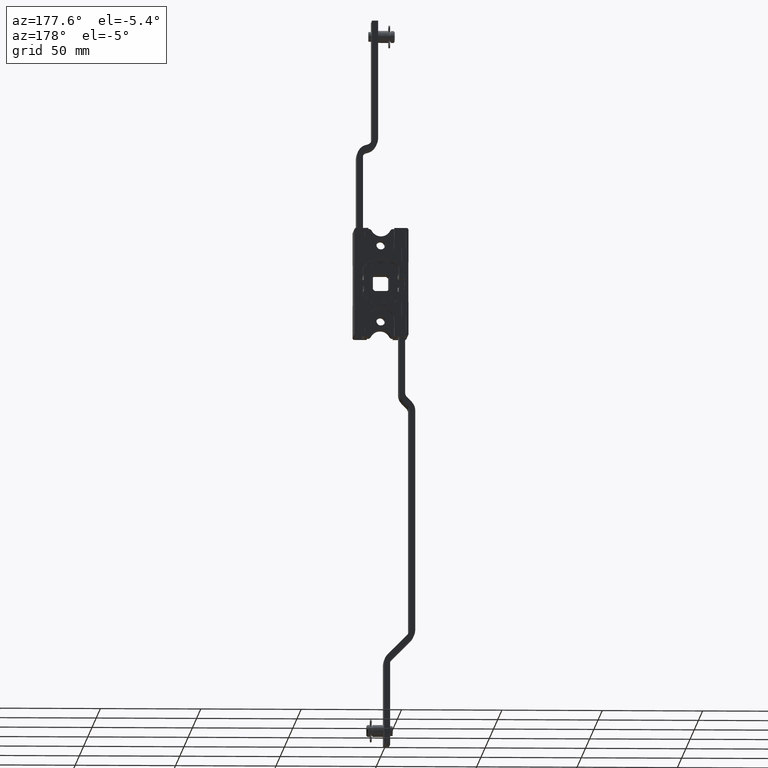
[diagram: clean part render]
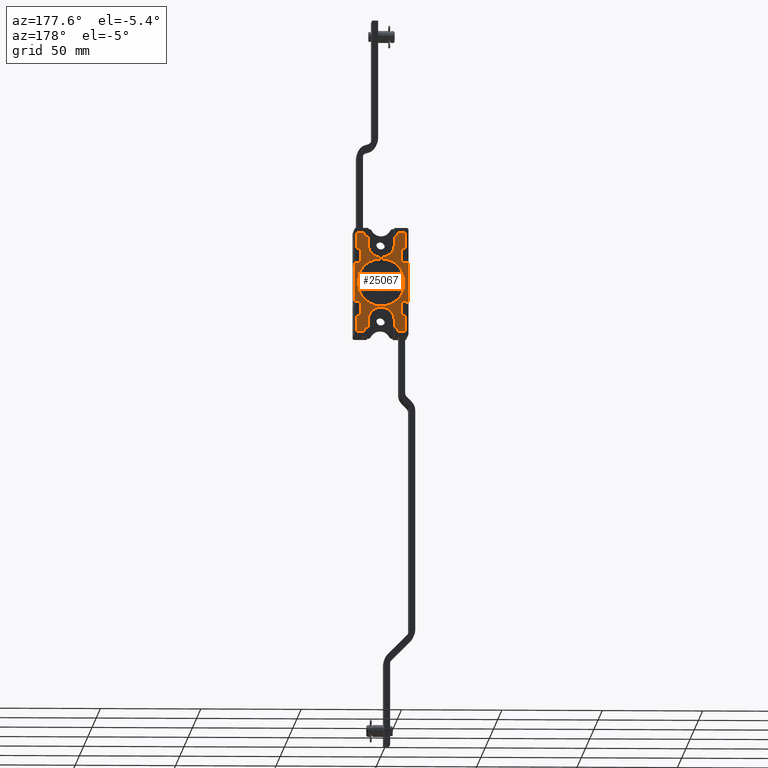
[diagram: same view with one face highlighted and labeled with its STEP entity id]
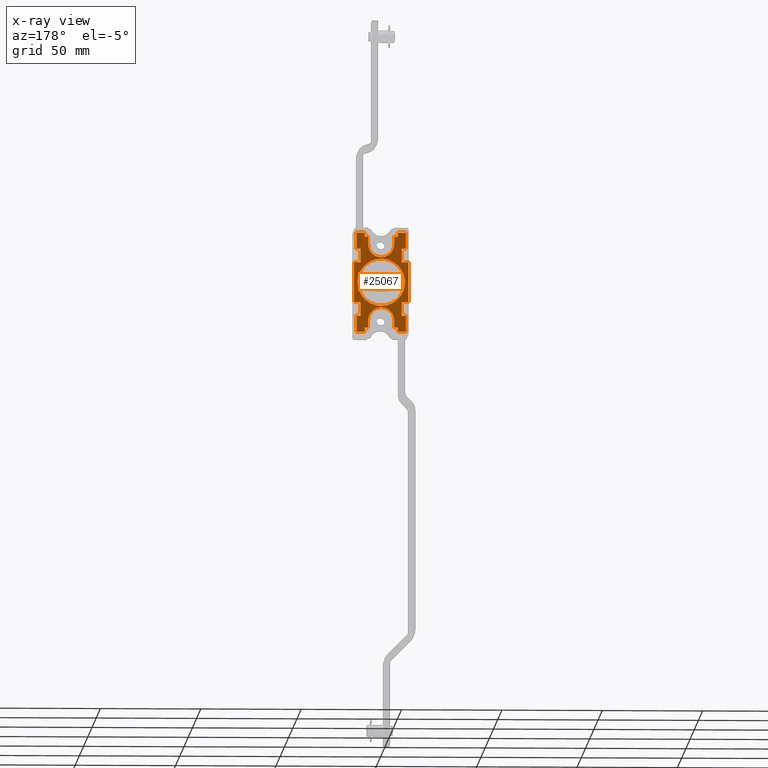
[diagram: x-ray of the same camera — body ghosted, the highlighted face saturated]
A machine part, auxiliary view. The second image highlights one B-rep face of the part: STEP entity #25067.
The next image is the same camera in x-ray: the body ghosted, the highlighted face saturated — about 0% of this face is hidden behind the body in this view.
In plain terms, the highlighted face is a freeform B-spline surface patch.
Its self-contained STEP definition (entity closure, byte-faithful):
#7294=CARTESIAN_POINT('',(3.045343107601103,8.900000422727320,-11.400258706890250));
#7295=VERTEX_POINT('',#7294);
#7296=CARTESIAN_POINT('',(-9.521273E-012,8.900000422727320,-11.800000560470259));
#7297=VERTEX_POINT('',#7296);
#7298=CARTESIAN_POINT('',(3.045343107601103,8.900000422727320,-11.400258706890250));
#7299=CARTESIAN_POINT('',(1.548907275951181,8.900000422727322,-11.800000560470261));
#7300=CARTESIAN_POINT('',(-9.521273E-012,8.900000422727320,-11.800000560470259));
#7308=(BOUNDED_CURVE()B_SPLINE_CURVE(2,(#7298,#7299,#7300),.UNSPECIFIED.,.F.,.U.)B_SPLINE_CURVE_WITH_KNOTS((3,3),(0.955984572308249,1.0),.UNSPECIFIED.)CURVE()GEOMETRIC_REPRESENTATION_ITEM()RATIONAL_B_SPLINE_CURVE((0.915023485134321,0.948432718823649,1.0))REPRESENTATION_ITEM(''));
#7309=EDGE_CURVE('',#7295,#7297,#7308,.T.);
#7311=CARTESIAN_POINT('',(-9.521273E-012,8.900000422727320,11.800000560470259));
#7312=VERTEX_POINT('',#7311);
#7313=CARTESIAN_POINT('',(-9.521273E-012,8.900000422727320,-11.800000560470259));
#7314=CARTESIAN_POINT('',(-11.800000560479779,8.900000422727322,-11.800000560470258));
#7315=CARTESIAN_POINT('',(-11.800000560479781,8.900000422727320,-1.089900E-015));
#7316=CARTESIAN_POINT('',(-11.800000560479779,8.900000422727322,11.800000560470256));
#7317=CARTESIAN_POINT('',(-9.521273E-012,8.900000422727320,11.800000560470259));
#7325=(BOUNDED_CURVE()B_SPLINE_CURVE(2,(#7313,#7314,#7315,#7316,#7317),.UNSPECIFIED.,.F.,.U.)B_SPLINE_CURVE_WITH_KNOTS((3,2,3),(0.0,0.250000000000000,0.500000000000000),.UNSPECIFIED.)CURVE()GEOMETRIC_REPRESENTATION_ITEM()RATIONAL_B_SPLINE_CURVE((1.0,0.707106781186547,1.0,0.707106781186547,1.0))REPRESENTATION_ITEM(''));
#7326=EDGE_CURVE('',#7297,#7312,#7325,.T.);
#7328=CARTESIAN_POINT('',(11.796389403912750,8.900000422727320,0.291907961742623));
#7329=VERTEX_POINT('',#7328);
#7330=CARTESIAN_POINT('',(-9.521273E-012,8.900000422727320,11.800000560470259));
#7331=CARTESIAN_POINT('',(11.511615500013697,8.900000422727320,11.800000560470256));
#7332=CARTESIAN_POINT('',(11.796389403912753,8.900000422727320,0.291907961742623));
#7340=(BOUNDED_CURVE()B_SPLINE_CURVE(2,(#7330,#7331,#7332),.UNSPECIFIED.,.F.,.U.)B_SPLINE_CURVE_WITH_KNOTS((3,3),(0.500000000000000,0.745648533336646),.UNSPECIFIED.)CURVE()GEOMETRIC_REPRESENTATION_ITEM()RATIONAL_B_SPLINE_CURVE((1.0,0.712204841496904,0.989981351695194))REPRESENTATION_ITEM(''));
#7341=EDGE_CURVE('',#7312,#7329,#7340,.T.);
#7523=CARTESIAN_POINT('',(11.796389403912752,8.900000422727320,0.291907961742623));
#7524=CARTESIAN_POINT('',(11.800000560460740,8.900000422727320,0.145976317818374));
#7525=CARTESIAN_POINT('',(11.800000560460740,8.900000422727320,-1.089900E-015));
#7526=CARTESIAN_POINT('',(11.800000560460733,8.900000422727320,-9.061633205116783));
#7527=CARTESIAN_POINT('',(3.045343107601103,8.900000422727320,-11.400258706890243));
#7535=(BOUNDED_CURVE()B_SPLINE_CURVE(2,(#7523,#7524,#7525,#7526,#7527),.UNSPECIFIED.,.F.,.U.)B_SPLINE_CURVE_WITH_KNOTS((3,2,3),(0.745648533336646,0.750000000000000,0.955984572308250),.UNSPECIFIED.)CURVE()GEOMETRIC_REPRESENTATION_ITEM()RATIONAL_B_SPLINE_CURVE((0.989981351695193,0.994901939689643,1.0,0.758674062362897,0.915023485134322))REPRESENTATION_ITEM(''));
#7536=EDGE_CURVE('',#7329,#7295,#7535,.T.);
#21226=CARTESIAN_POINT('',(6.500000308723720,8.900000422727320,19.000000902451848));
#21227=VERTEX_POINT('',#21226);
#21228=CARTESIAN_POINT('',(-6.500000308743160,8.900000422727320,19.000000902451848));
#21229=VERTEX_POINT('',#21228);
#21230=CARTESIAN_POINT('',(6.500000308723720,8.900000422727320,19.000000902451848));
#21231=CARTESIAN_POINT('',(6.500000308723719,8.900000422727322,12.500000593718411));
#21232=CARTESIAN_POINT('',(-9.720225E-012,8.900000422727320,12.500000593718410));
#21233=CARTESIAN_POINT('',(-6.500000308743160,8.900000422727322,12.500000593718411));
#21234=CARTESIAN_POINT('',(-6.500000308743161,8.900000422727320,19.000000902451848));
#21242=(BOUNDED_CURVE()B_SPLINE_CURVE(2,(#21230,#21231,#21232,#21233,#21234),.UNSPECIFIED.,.F.,.U.)B_SPLINE_CURVE_WITH_KNOTS((3,2,3),(0.0,0.500000000000000,1.0),.UNSPECIFIED.)CURVE()GEOMETRIC_REPRESENTATION_ITEM()RATIONAL_B_SPLINE_CURVE((1.0,0.707106781186547,1.0,0.707106781186547,1.0))REPRESENTATION_ITEM(''));
#21243=EDGE_CURVE('',#21227,#21229,#21242,.T.);
#21383=CARTESIAN_POINT('',(-6.500000308743100,8.900000422727320,-19.000000902451848));
#21384=VERTEX_POINT('',#21383);
#21385=CARTESIAN_POINT('',(6.500000308723690,8.900000422727320,-19.000000902451848));
#21386=VERTEX_POINT('',#21385);
#21387=CARTESIAN_POINT('',(-6.500000308743161,8.900000422727320,-19.000000902451848));
#21388=CARTESIAN_POINT('',(-6.500000308743160,8.900000422727322,-12.500000593718411));
#21389=CARTESIAN_POINT('',(-9.720225E-012,8.900000422727320,-12.500000593718410));
#21390=CARTESIAN_POINT('',(6.500000308723719,8.900000422727322,-12.500000593718411));
#21391=CARTESIAN_POINT('',(6.500000308723720,8.900000422727320,-19.000000902451848));
#21399=(BOUNDED_CURVE()B_SPLINE_CURVE(2,(#21387,#21388,#21389,#21390,#21391),.UNSPECIFIED.,.F.,.U.)B_SPLINE_CURVE_WITH_KNOTS((3,2,3),(0.0,0.500000000000000,1.0),.UNSPECIFIED.)CURVE()GEOMETRIC_REPRESENTATION_ITEM()RATIONAL_B_SPLINE_CURVE((1.0,0.707106781186547,1.0,0.707106781186547,1.0))REPRESENTATION_ITEM(''));
#21400=EDGE_CURVE('',#21384,#21386,#21399,.T.);
#21430=CARTESIAN_POINT('',(-12.250000581853520,8.900000422727320,24.750001175562200));
#21431=VERTEX_POINT('',#21430);
#21437=CARTESIAN_POINT('',(-12.250000581853520,8.900000422727320,16.750000795582601));
#21438=VERTEX_POINT('',#21437);
#21439=CARTESIAN_POINT('',(-12.250000581853520,8.900000422727320,16.750000795582601));
#21440=CARTESIAN_POINT('',(-12.250000581853520,8.900000422727320,24.750001175562200));
#21441=QUASI_UNIFORM_CURVE('',1,(#21439,#21440),.UNSPECIFIED.,.F.,.U.);
#21442=EDGE_CURVE('',#21438,#21431,#21441,.T.);
#21466=CARTESIAN_POINT('',(-12.250000581853520,8.900000422727320,-16.750000795582601));
#21467=VERTEX_POINT('',#21466);
#21473=CARTESIAN_POINT('',(-12.250000581853520,8.900000422727310,-24.750001175562200));
#21474=VERTEX_POINT('',#21473);
#21475=CARTESIAN_POINT('',(-12.250000581853520,8.900000422727310,-24.750001175562200));
#21476=CARTESIAN_POINT('',(-12.250000581853520,8.900000422727320,-16.750000795582601));
#21477=QUASI_UNIFORM_CURVE('',1,(#21475,#21476),.UNSPECIFIED.,.F.,.U.);
#21478=EDGE_CURVE('',#21474,#21467,#21477,.T.);
#21501=CARTESIAN_POINT('',(-8.250000391863718,8.900000422727310,-24.750001175562200));
#21502=VERTEX_POINT('',#21501);
#21503=CARTESIAN_POINT('',(-8.250000391863718,8.900000422727310,-24.750001175562200));
#21504=CARTESIAN_POINT('',(-12.250000581853520,8.900000422727310,-24.750001175562200));
#21505=QUASI_UNIFORM_CURVE('',1,(#21503,#21504),.UNSPECIFIED.,.F.,.U.);
#21506=EDGE_CURVE('',#21502,#21474,#21505,.T.);
#21530=CARTESIAN_POINT('',(8.250000391844200,8.900000422727310,-24.750001175562200));
#21531=VERTEX_POINT('',#21530);
#21537=CARTESIAN_POINT('',(12.250000581834000,8.900000422727310,-24.750001175562250));
#21538=VERTEX_POINT('',#21537);
#21539=CARTESIAN_POINT('',(12.250000581834000,8.900000422727310,-24.750001175562250));
#21540=CARTESIAN_POINT('',(8.250000391844200,8.900000422727310,-24.750001175562200));
#21541=QUASI_UNIFORM_CURVE('',1,(#21539,#21540),.UNSPECIFIED.,.F.,.U.);
#21542=EDGE_CURVE('',#21538,#21531,#21541,.T.);
#21565=CARTESIAN_POINT('',(12.250000581834000,8.900000422727320,-16.750000795582601));
#21566=VERTEX_POINT('',#21565);
#21567=CARTESIAN_POINT('',(12.250000581834000,8.900000422727320,-16.750000795582601));
#21568=CARTESIAN_POINT('',(12.250000581834000,8.900000422727310,-24.750001175562250));
#21569=QUASI_UNIFORM_CURVE('',1,(#21567,#21568),.UNSPECIFIED.,.F.,.U.);
#21570=EDGE_CURVE('',#21566,#21538,#21569,.T.);
#21594=CARTESIAN_POINT('',(12.250000581834000,8.900000422727320,16.750000795582601));
#21595=VERTEX_POINT('',#21594);
#21601=CARTESIAN_POINT('',(12.250000581834000,8.900000422727320,24.750001175562250));
#21602=VERTEX_POINT('',#21601);
#21603=CARTESIAN_POINT('',(12.250000581834000,8.900000422727320,24.750001175562250));
#21604=CARTESIAN_POINT('',(12.250000581834000,8.900000422727320,16.750000795582601));
#21605=QUASI_UNIFORM_CURVE('',1,(#21603,#21604),.UNSPECIFIED.,.F.,.U.);
#21606=EDGE_CURVE('',#21602,#21595,#21605,.T.);
#21629=CARTESIAN_POINT('',(8.250000391844200,8.900000422727320,24.750001175562200));
#21630=VERTEX_POINT('',#21629);
#21631=CARTESIAN_POINT('',(8.250000391844200,8.900000422727320,24.750001175562200));
#21632=CARTESIAN_POINT('',(12.250000581834000,8.900000422727320,24.750001175562250));
#21633=QUASI_UNIFORM_CURVE('',1,(#21631,#21632),.UNSPECIFIED.,.F.,.U.);
#21634=EDGE_CURVE('',#21630,#21602,#21633,.T.);
#21656=CARTESIAN_POINT('',(-8.250000391863718,8.900000422727320,24.750001175562200));
#21657=VERTEX_POINT('',#21656);
#21663=CARTESIAN_POINT('',(-12.250000581853520,8.900000422727320,24.750001175562200));
#21664=CARTESIAN_POINT('',(-8.250000391863718,8.900000422727320,24.750001175562200));
#21665=QUASI_UNIFORM_CURVE('',1,(#21663,#21664),.UNSPECIFIED.,.F.,.U.);
#21666=EDGE_CURVE('',#21431,#21657,#21665,.T.);
#21739=CARTESIAN_POINT('',(-8.250000391863718,8.900000422727320,22.750001080567301));
#21740=VERTEX_POINT('',#21739);
#21746=CARTESIAN_POINT('',(-8.250000391863718,8.900000422727320,24.750001175562200));
#21747=CARTESIAN_POINT('',(-8.250000391863718,8.900000422727320,22.750001080567301));
#21748=QUASI_UNIFORM_CURVE('',1,(#21746,#21747),.UNSPECIFIED.,.F.,.U.);
#21749=EDGE_CURVE('',#21657,#21740,#21748,.T.);
#21762=CARTESIAN_POINT('',(-6.500000308743100,8.900000422727320,22.750001080567301));
#21763=VERTEX_POINT('',#21762);
#21769=CARTESIAN_POINT('',(-8.250000391863718,8.900000422727320,22.750001080567301));
#21770=CARTESIAN_POINT('',(-6.500000308743100,8.900000422727320,22.750001080567301));
#21771=QUASI_UNIFORM_CURVE('',1,(#21769,#21770),.UNSPECIFIED.,.F.,.U.);
#21772=EDGE_CURVE('',#21740,#21763,#21771,.T.);
#21799=CARTESIAN_POINT('',(-6.500000308743160,8.900000422727320,19.000000902451848));
#21800=CARTESIAN_POINT('',(-6.500000308743100,8.900000422727320,22.750001080567301));
#21801=QUASI_UNIFORM_CURVE('',1,(#21799,#21800),.UNSPECIFIED.,.F.,.U.);
#21802=EDGE_CURVE('',#21229,#21763,#21801,.T.);
#21878=CARTESIAN_POINT('',(-10.250000486858600,8.900000422727320,16.750000795582601));
#21879=VERTEX_POINT('',#21878);
#21880=CARTESIAN_POINT('',(-10.250000486858600,8.900000422727320,16.750000795582601));
#21881=CARTESIAN_POINT('',(-12.250000581853520,8.900000422727320,16.750000795582601));
#21882=QUASI_UNIFORM_CURVE('',1,(#21880,#21881),.UNSPECIFIED.,.F.,.U.);
#21883=EDGE_CURVE('',#21879,#21438,#21882,.T.);
#21900=CARTESIAN_POINT('',(-10.250000486858600,8.900000422727320,10.000000474974801));
#21901=VERTEX_POINT('',#21900);
#21902=CARTESIAN_POINT('',(-10.250000486858600,8.900000422727320,10.000000474974801));
#21903=CARTESIAN_POINT('',(-10.250000486858600,8.900000422727320,16.750000795582601));
#21904=QUASI_UNIFORM_CURVE('',1,(#21902,#21903),.UNSPECIFIED.,.F.,.U.);
#21905=EDGE_CURVE('',#21901,#21879,#21904,.T.);
#21922=CARTESIAN_POINT('',(-13.500000641225300,8.900000422727320,10.000000474974801));
#21923=VERTEX_POINT('',#21922);
#21924=CARTESIAN_POINT('',(-13.500000641225300,8.900000422727320,10.000000474974801));
#21925=CARTESIAN_POINT('',(-10.250000486858600,8.900000422727320,10.000000474974801));
#21926=QUASI_UNIFORM_CURVE('',1,(#21924,#21925),.UNSPECIFIED.,.F.,.U.);
#21927=EDGE_CURVE('',#21923,#21901,#21926,.T.);
#21987=CARTESIAN_POINT('',(8.250000391844200,8.900000422727320,22.750001080567301));
#21988=VERTEX_POINT('',#21987);
#21994=CARTESIAN_POINT('',(6.500000308723690,8.900000422727320,22.750001080567301));
#21995=VERTEX_POINT('',#21994);
#21996=CARTESIAN_POINT('',(6.500000308723690,8.900000422727320,22.750001080567301));
#21997=CARTESIAN_POINT('',(8.250000391844200,8.900000422727320,22.750001080567301));
#21998=QUASI_UNIFORM_CURVE('',1,(#21996,#21997),.UNSPECIFIED.,.F.,.U.);
#21999=EDGE_CURVE('',#21995,#21988,#21998,.T.);
#22021=CARTESIAN_POINT('',(8.250000391844200,8.900000422727320,22.750001080567301));
#22022=CARTESIAN_POINT('',(8.250000391844200,8.900000422727320,24.750001175562200));
#22023=QUASI_UNIFORM_CURVE('',1,(#22021,#22022),.UNSPECIFIED.,.F.,.U.);
#22024=EDGE_CURVE('',#21988,#21630,#22023,.T.);
#22059=CARTESIAN_POINT('',(6.500000308723690,8.900000422727320,22.750001080567301));
#22060=CARTESIAN_POINT('',(6.500000308723720,8.900000422727320,19.000000902451848));
#22061=QUASI_UNIFORM_CURVE('',1,(#22059,#22060),.UNSPECIFIED.,.F.,.U.);
#22062=EDGE_CURVE('',#21995,#21227,#22061,.T.);
#22124=CARTESIAN_POINT('',(10.250000486839101,8.900000422727320,16.750000795582601));
#22125=VERTEX_POINT('',#22124);
#22131=CARTESIAN_POINT('',(12.250000581834000,8.900000422727320,16.750000795582601));
#22132=CARTESIAN_POINT('',(10.250000486839101,8.900000422727320,16.750000795582601));
#22133=QUASI_UNIFORM_CURVE('',1,(#22131,#22132),.UNSPECIFIED.,.F.,.U.);
#22134=EDGE_CURVE('',#21595,#22125,#22133,.T.);
#22151=CARTESIAN_POINT('',(10.250000486839101,8.900000422727320,10.000000474974801));
#22152=VERTEX_POINT('',#22151);
#22158=CARTESIAN_POINT('',(10.250000486839101,8.900000422727320,16.750000795582601));
#22159=CARTESIAN_POINT('',(10.250000486839101,8.900000422727320,10.000000474974801));
#22160=QUASI_UNIFORM_CURVE('',1,(#22158,#22159),.UNSPECIFIED.,.F.,.U.);
#22161=EDGE_CURVE('',#22125,#22152,#22160,.T.);
#22187=CARTESIAN_POINT('',(13.500000641205800,8.900000422727320,10.000000474974801));
#22188=VERTEX_POINT('',#22187);
#22194=CARTESIAN_POINT('',(10.250000486839101,8.900000422727320,10.000000474974801));
#22195=CARTESIAN_POINT('',(13.500000641205800,8.900000422727320,10.000000474974801));
#22196=QUASI_UNIFORM_CURVE('',1,(#22194,#22195),.UNSPECIFIED.,.F.,.U.);
#22197=EDGE_CURVE('',#22152,#22188,#22196,.T.);
#22261=CARTESIAN_POINT('',(10.250000486839101,8.900000422727320,-10.000000474974801));
#22262=VERTEX_POINT('',#22261);
#22268=CARTESIAN_POINT('',(13.500000641205800,8.900000422727320,-10.000000474974801));
#22269=VERTEX_POINT('',#22268);
#22270=CARTESIAN_POINT('',(13.500000641205800,8.900000422727320,-10.000000474974801));
#22271=CARTESIAN_POINT('',(10.250000486839101,8.900000422727320,-10.000000474974801));
#22272=QUASI_UNIFORM_CURVE('',1,(#22270,#22271),.UNSPECIFIED.,.F.,.U.);
#22273=EDGE_CURVE('',#22269,#22262,#22272,.T.);
#22325=CARTESIAN_POINT('',(10.250000486839101,8.900000422727320,-16.750000795582601));
#22326=VERTEX_POINT('',#22325);
#22327=CARTESIAN_POINT('',(10.250000486839101,8.900000422727320,-16.750000795582601));
#22328=CARTESIAN_POINT('',(12.250000581834000,8.900000422727320,-16.750000795582601));
#22329=QUASI_UNIFORM_CURVE('',1,(#22327,#22328),.UNSPECIFIED.,.F.,.U.);
#22330=EDGE_CURVE('',#22326,#21566,#22329,.T.);
#22347=CARTESIAN_POINT('',(10.250000486839101,8.900000422727320,-10.000000474974801));
#22348=CARTESIAN_POINT('',(10.250000486839101,8.900000422727320,-16.750000795582601));
#22349=QUASI_UNIFORM_CURVE('',1,(#22347,#22348),.UNSPECIFIED.,.F.,.U.);
#22350=EDGE_CURVE('',#22262,#22326,#22349,.T.);
#22398=CARTESIAN_POINT('',(-6.500000308743100,8.900000422727310,-22.750001080567301));
#22399=VERTEX_POINT('',#22398);
#22405=CARTESIAN_POINT('',(-6.500000308743100,8.900000422727320,-19.000000902451848));
#22406=CARTESIAN_POINT('',(-6.500000308743100,8.900000422727310,-22.750001080567301));
#22407=QUASI_UNIFORM_CURVE('',1,(#22405,#22406),.UNSPECIFIED.,.F.,.U.);
#22408=EDGE_CURVE('',#21384,#22399,#22407,.T.);
#22440=CARTESIAN_POINT('',(-8.250000391863718,8.900000422727310,-22.750001080567301));
#22441=VERTEX_POINT('',#22440);
#22447=CARTESIAN_POINT('',(-6.500000308743100,8.900000422727310,-22.750001080567301));
#22448=CARTESIAN_POINT('',(-8.250000391863718,8.900000422727310,-22.750001080567301));
#22449=QUASI_UNIFORM_CURVE('',1,(#22447,#22448),.UNSPECIFIED.,.F.,.U.);
#22450=EDGE_CURVE('',#22399,#22441,#22449,.T.);
#22468=CARTESIAN_POINT('',(-8.250000391863718,8.900000422727310,-22.750001080567301));
#22469=CARTESIAN_POINT('',(-8.250000391863718,8.900000422727310,-24.750001175562200));
#22470=QUASI_UNIFORM_CURVE('',1,(#22468,#22469),.UNSPECIFIED.,.F.,.U.);
#22471=EDGE_CURVE('',#22441,#21502,#22470,.T.);
#22535=CARTESIAN_POINT('',(-10.250000486858600,8.900000422727320,-10.000000474974801));
#22536=VERTEX_POINT('',#22535);
#22542=CARTESIAN_POINT('',(-10.250000486858600,8.900000422727320,-16.750000795582601));
#22543=VERTEX_POINT('',#22542);
#22544=CARTESIAN_POINT('',(-10.250000486858600,8.900000422727320,-16.750000795582601));
#22545=CARTESIAN_POINT('',(-10.250000486858600,8.900000422727320,-10.000000474974801));
#22546=QUASI_UNIFORM_CURVE('',1,(#22544,#22545),.UNSPECIFIED.,.F.,.U.);
#22547=EDGE_CURVE('',#22543,#22536,#22546,.T.);
#22577=CARTESIAN_POINT('',(-13.500000641225300,8.900000422727320,-10.000000474974801));
#22578=VERTEX_POINT('',#22577);
#22584=CARTESIAN_POINT('',(-10.250000486858600,8.900000422727320,-10.000000474974801));
#22585=CARTESIAN_POINT('',(-13.500000641225300,8.900000422727320,-10.000000474974801));
#22586=QUASI_UNIFORM_CURVE('',1,(#22584,#22585),.UNSPECIFIED.,.F.,.U.);
#22587=EDGE_CURVE('',#22536,#22578,#22586,.T.);
#22620=CARTESIAN_POINT('',(-12.250000581853520,8.900000422727320,-16.750000795582601));
#22621=CARTESIAN_POINT('',(-10.250000486858600,8.900000422727320,-16.750000795582601));
#22622=QUASI_UNIFORM_CURVE('',1,(#22620,#22621),.UNSPECIFIED.,.F.,.U.);
#22623=EDGE_CURVE('',#21467,#22543,#22622,.T.);
#22713=CARTESIAN_POINT('',(6.500000308723690,8.900000422727310,-22.750001080567301));
#22714=VERTEX_POINT('',#22713);
#22715=CARTESIAN_POINT('',(6.500000308723690,8.900000422727310,-22.750001080567301));
#22716=CARTESIAN_POINT('',(6.500000308723690,8.900000422727320,-19.000000902451848));
#22717=QUASI_UNIFORM_CURVE('',1,(#22715,#22716),.UNSPECIFIED.,.F.,.U.);
#22718=EDGE_CURVE('',#22714,#21386,#22717,.T.);
#22735=CARTESIAN_POINT('',(8.250000391844200,8.900000422727310,-22.750001080567301));
#22736=VERTEX_POINT('',#22735);
#22737=CARTESIAN_POINT('',(8.250000391844200,8.900000422727310,-22.750001080567301));
#22738=CARTESIAN_POINT('',(6.500000308723690,8.900000422727310,-22.750001080567301));
#22739=QUASI_UNIFORM_CURVE('',1,(#22737,#22738),.UNSPECIFIED.,.F.,.U.);
#22740=EDGE_CURVE('',#22736,#22714,#22739,.T.);
#22757=CARTESIAN_POINT('',(8.250000391844200,8.900000422727310,-24.750001175562200));
#22758=CARTESIAN_POINT('',(8.250000391844200,8.900000422727310,-22.750001080567301));
#22759=QUASI_UNIFORM_CURVE('',1,(#22757,#22758),.UNSPECIFIED.,.F.,.U.);
#22760=EDGE_CURVE('',#21531,#22736,#22759,.T.);
#24879=CARTESIAN_POINT('',(13.500000641205800,8.900000422727320,10.000000474974801));
#24880=CARTESIAN_POINT('',(13.500000641205800,8.900000422727320,-10.000000474974801));
#24881=QUASI_UNIFORM_CURVE('',1,(#24879,#24880),.UNSPECIFIED.,.F.,.U.);
#24882=EDGE_CURVE('',#22188,#22269,#24881,.T.);
#24911=CARTESIAN_POINT('',(-13.500000641225300,8.900000422727320,-10.000000474974801));
#24912=CARTESIAN_POINT('',(-13.500000641225300,8.900000422727320,10.000000474974801));
#24913=QUASI_UNIFORM_CURVE('',1,(#24911,#24912),.UNSPECIFIED.,.F.,.U.);
#24914=EDGE_CURVE('',#22578,#21923,#24913,.T.);
#25018=CARTESIAN_POINT('',(-14.848651159864881,8.900000422727320,-27.222527126401520));
#25019=CARTESIAN_POINT('',(14.848651401244201,8.900000422727320,-27.222527126401520));
#25020=CARTESIAN_POINT('',(-14.848651159864881,8.900000422727320,27.222527568966029));
#25021=CARTESIAN_POINT('',(14.848651401244201,8.900000422727320,27.222527568966029));
#25022=B_SPLINE_SURFACE_WITH_KNOTS('',1,1,((#25018,#25020),(#25019,#25021)),.UNSPECIFIED.,.F.,.F.,.U.,(2,2),(2,2),(0.0,29.697302561109080),(0.0,54.445054695367553),.UNSPECIFIED.);
#25023=ORIENTED_EDGE('',*,*,#21802,.F.);
#25024=ORIENTED_EDGE('',*,*,#21243,.F.);
#25025=ORIENTED_EDGE('',*,*,#22062,.F.);
#25026=ORIENTED_EDGE('',*,*,#21999,.T.);
#25027=ORIENTED_EDGE('',*,*,#22024,.T.);
#25028=ORIENTED_EDGE('',*,*,#21634,.T.);
#25029=ORIENTED_EDGE('',*,*,#21606,.T.);
#25030=ORIENTED_EDGE('',*,*,#22134,.T.);
#25031=ORIENTED_EDGE('',*,*,#22161,.T.);
#25032=ORIENTED_EDGE('',*,*,#22197,.T.);
#25033=ORIENTED_EDGE('',*,*,#24882,.T.);
#25034=ORIENTED_EDGE('',*,*,#22273,.T.);
#25035=ORIENTED_EDGE('',*,*,#22350,.T.);
#25036=ORIENTED_EDGE('',*,*,#22330,.T.);
#25037=ORIENTED_EDGE('',*,*,#21570,.T.);
#25038=ORIENTED_EDGE('',*,*,#21542,.T.);
#25039=ORIENTED_EDGE('',*,*,#22760,.T.);
#25040=ORIENTED_EDGE('',*,*,#22740,.T.);
#25041=ORIENTED_EDGE('',*,*,#22718,.T.);
#25042=ORIENTED_EDGE('',*,*,#21400,.F.);
#25043=ORIENTED_EDGE('',*,*,#22408,.T.);
#25044=ORIENTED_EDGE('',*,*,#22450,.T.);
#25045=ORIENTED_EDGE('',*,*,#22471,.T.);
#25046=ORIENTED_EDGE('',*,*,#21506,.T.);
#25047=ORIENTED_EDGE('',*,*,#21478,.T.);
#25048=ORIENTED_EDGE('',*,*,#22623,.T.);
#25049=ORIENTED_EDGE('',*,*,#22547,.T.);
#25050=ORIENTED_EDGE('',*,*,#22587,.T.);
#25051=ORIENTED_EDGE('',*,*,#24914,.T.);
#25052=ORIENTED_EDGE('',*,*,#21927,.T.);
#25053=ORIENTED_EDGE('',*,*,#21905,.T.);
#25054=ORIENTED_EDGE('',*,*,#21883,.T.);
#25055=ORIENTED_EDGE('',*,*,#21442,.T.);
#25056=ORIENTED_EDGE('',*,*,#21666,.T.);
#25057=ORIENTED_EDGE('',*,*,#21749,.T.);
#25058=ORIENTED_EDGE('',*,*,#21772,.T.);
#25059=EDGE_LOOP('',(#25023,#25024,#25025,#25026,#25027,#25028,#25029,#25030,#25031,#25032,#25033,#25034,#25035,#25036,#25037,#25038,#25039,#25040,#25041,#25042,#25043,#25044,#25045,#25046,#25047,#25048,#25049,#25050,#25051,#25052,#25053,#25054,#25055,#25056,#25057,#25058));
#25060=FACE_OUTER_BOUND('',#25059,.T.);
#25061=ORIENTED_EDGE('',*,*,#7326,.F.);
#25062=ORIENTED_EDGE('',*,*,#7309,.F.);
#25063=ORIENTED_EDGE('',*,*,#7536,.F.);
#25064=ORIENTED_EDGE('',*,*,#7341,.F.);
#25065=EDGE_LOOP('',(#25061,#25062,#25063,#25064));
#25066=FACE_BOUND('',#25065,.T.);
#25067=ADVANCED_FACE('',(#25060,#25066),#25022,.F.);